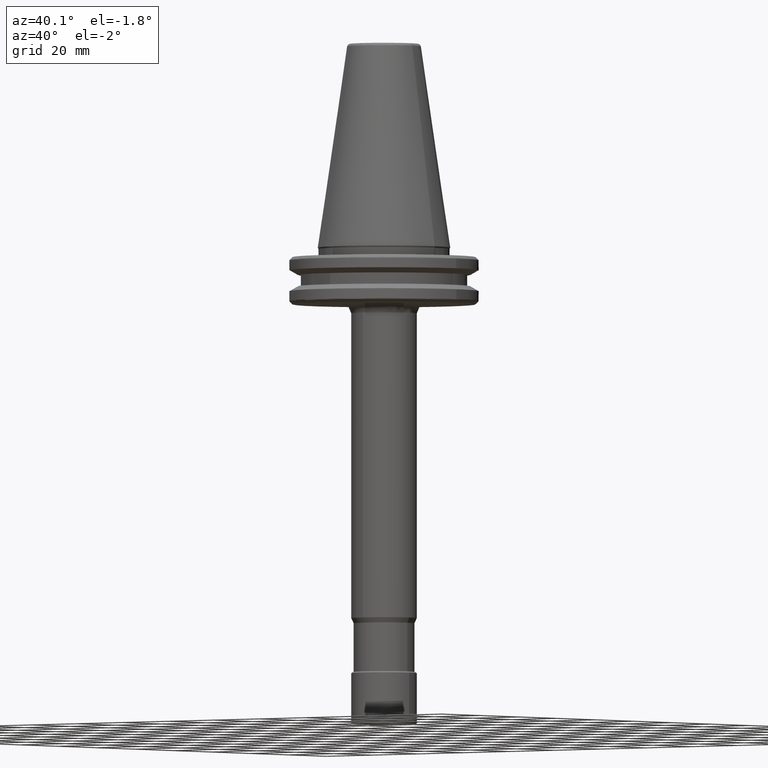
[diagram: clean part render]
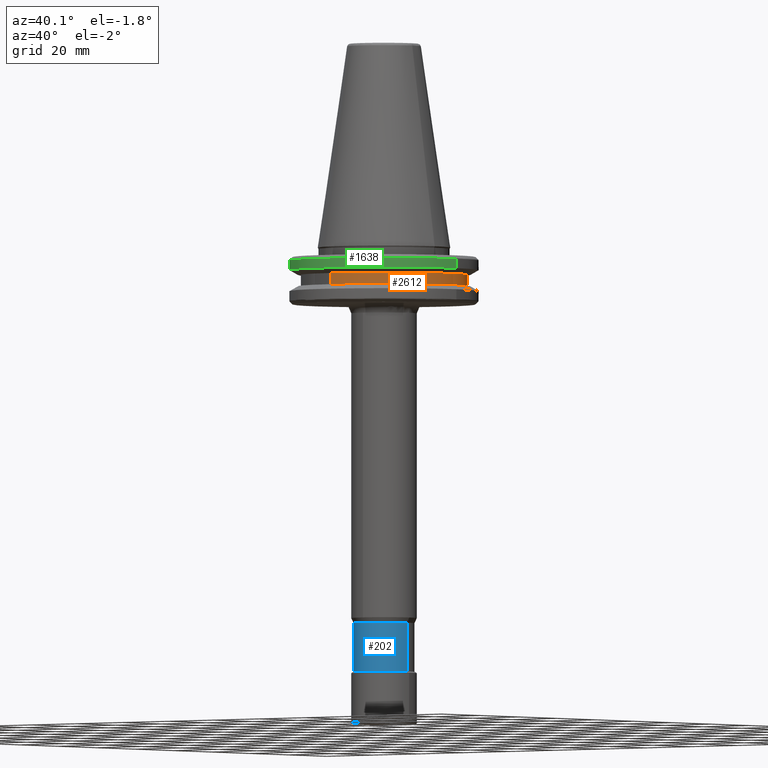
[diagram: same view with three faces highlighted in distinct colors, each labeled with its STEP entity id]
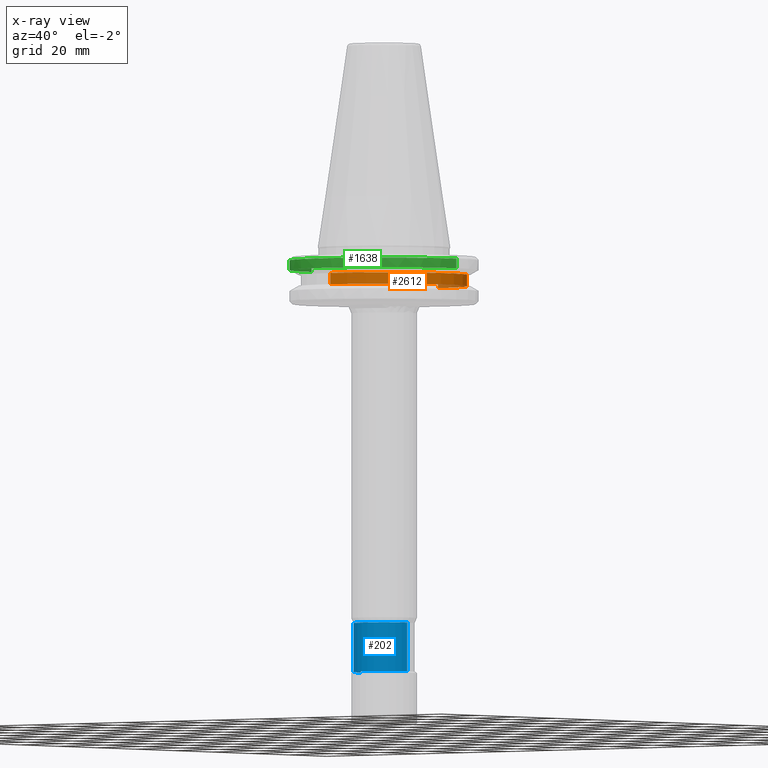
[diagram: x-ray of the same camera — body ghosted, the three highlighted faces saturated]
A machine part, auxiliary view with three faces highlighted in distinct colors.
The next image is the same camera in x-ray (body ghosted, the three faces saturated) — at least one of them is partly hidden behind the body in this view.
Their STEP definitions:

[orange] entity #2612 — the highlighted cylindrical surface (partial cylindrical patch) has radius 28 mm, axis along (0, -0, 1).
#9 = CARTESIAN_POINT ( 'NONE',  ( 0.0000000000000000000, -28.00000000000000000, -13.00000000360000200 ) ) ;
#62 = CYLINDRICAL_SURFACE ( 'NONE', #1961, 28.00000000000000000 ) ;
#67 = VERTEX_POINT ( 'NONE', #9 ) ;
#68 = FACE_OUTER_BOUND ( 'NONE', #2570, .T. ) ;
#336 = CARTESIAN_POINT ( 'NONE',  ( 0.0000000000000000000, 1.115178739458694700E-025, -13.00000000360000000 ) ) ;
#351 = AXIS2_PLACEMENT_3D ( 'NONE', #336, #2111, #631 ) ;
#431 = DIRECTION ( 'NONE',  ( 0.0000000000000000000, -3.097720492815727700E-017, 1.000000000000000000 ) ) ;
#631 = DIRECTION ( 'NONE',  ( 0.0000000000000000000, -1.000000000000000000, -6.195440985631454100E-017 ) ) ;
#674 = VERTEX_POINT ( 'NONE', #1989 ) ;
#779 = ORIENTED_EDGE ( 'NONE', *, *, #1553, .F. ) ;
#911 = EDGE_CURVE ( 'NONE', #2145, #674, #2134, .T. ) ;
#1008 = DIRECTION ( 'NONE',  ( 0.0000000000000000000, -3.097720492815727700E-017, 1.000000000000000000 ) ) ;
#1087 = VERTEX_POINT ( 'NONE', #1534 ) ;
#1488 = LINE ( 'NONE', #2494, #2853 ) ;
#1534 = CARTESIAN_POINT ( 'NONE',  ( 3.429011037612589300E-015, 28.00000000000000000, -13.00000000360000000 ) ) ;
#1553 = EDGE_CURVE ( 'NONE', #67, #2145, #2807, .T. ) ;
#1560 = ORIENTED_EDGE ( 'NONE', *, *, #2126, .T. ) ;
#1887 = ORIENTED_EDGE ( 'NONE', *, *, #911, .F. ) ;
#1925 = VECTOR ( 'NONE', #2810, 1000.000000000000000 ) ;
#1952 = ORIENTED_EDGE ( 'NONE', *, *, #2751, .F. ) ;
#1955 = DIRECTION ( 'NONE',  ( 0.0000000000000000000, -1.000000000000000000, -6.195440985631454100E-017 ) ) ;
#1961 = AXIS2_PLACEMENT_3D ( 'NONE', #2373, #3000, #2236 ) ;
#1989 = CARTESIAN_POINT ( 'NONE',  ( 3.429011037612589300E-015, 28.00000000000000000, -9.200000003449996900 ) ) ;
#2055 = CARTESIAN_POINT ( 'NONE',  ( 0.0000000000000000000, -28.00000000000000000, -13.00000000000000400 ) ) ;
#2111 = DIRECTION ( 'NONE',  ( -0.0000000000000000000, 3.097720492815727700E-017, -1.000000000000000000 ) ) ;
#2126 = EDGE_CURVE ( 'NONE', #1087, #674, #1488, .T. ) ;
#2134 = CIRCLE ( 'NONE', #2555, 28.00000000000000000 ) ;
#2145 = VERTEX_POINT ( 'NONE', #2229 ) ;
#2229 = CARTESIAN_POINT ( 'NONE',  ( 0.0000000000000000000, -28.00000000000000000, -9.200000003449998700 ) ) ;
#2236 = DIRECTION ( 'NONE',  ( 0.0000000000000000000, -1.000000000000000000, -6.195440985631454100E-017 ) ) ;
#2373 = CARTESIAN_POINT ( 'NONE',  ( 0.0000000000000000000, 0.0000000000000000000, -13.00000000000000200 ) ) ;
#2494 = CARTESIAN_POINT ( 'NONE',  ( 3.429011037612589300E-015, 28.00000000000000000, -13.00000000000000000 ) ) ;
#2499 = CIRCLE ( 'NONE', #351, 28.00000000000000000 ) ;
#2555 = AXIS2_PLACEMENT_3D ( 'NONE', #2953, #431, #1955 ) ;
#2570 = EDGE_LOOP ( 'NONE', ( #1952, #1560, #1887, #779 ) ) ;
#2612 = ADVANCED_FACE ( 'NONE', ( #68 ), #62, .T. ) ;
#2751 = EDGE_CURVE ( 'NONE', #1087, #67, #2499, .T. ) ;
#2807 = LINE ( 'NONE', #2055, #1925 ) ;
#2810 = DIRECTION ( 'NONE',  ( 0.0000000000000000000, -3.097720492815727700E-017, 1.000000000000000000 ) ) ;
#2853 = VECTOR ( 'NONE', #1008, 1000.000000000000000 ) ;
#2953 = CARTESIAN_POINT ( 'NONE',  ( 0.0000000000000000000, -1.177133786201263800E-016, -9.200000003449996900 ) ) ;
#3000 = DIRECTION ( 'NONE',  ( 0.0000000000000000000, -3.097720492815727700E-017, 1.000000000000000000 ) ) ;

[blue] entity #202 — the highlighted cylindrical surface (edge-blend (fillet) strip) has radius 10.2 mm, axis along (0, 0, 1).
#22 = EDGE_CURVE ( 'NONE', #1681, #2675, #55, .T. ) ;
#55 = LINE ( 'NONE', #1593, #2188 ) ;
#202 = ADVANCED_FACE ( 'NONE', ( #1298 ), #225, .T. ) ;
#225 = CYLINDRICAL_SURFACE ( 'NONE', #2036, 10.19999999999999900 ) ;
#461 = DIRECTION ( 'NONE',  ( 0.0000000000000000000, 0.0000000000000000000, 1.000000000000000000 ) ) ;
#875 = ORIENTED_EDGE ( 'NONE', *, *, #954, .T. ) ;
#954 = EDGE_CURVE ( 'NONE', #1814, #3121, #1236, .T. ) ;
#959 = VECTOR ( 'NONE', #461, 1000.000000000000000 ) ;
#1024 = EDGE_CURVE ( 'NONE', #1814, #1681, #2992, .T. ) ;
#1070 = CARTESIAN_POINT ( 'NONE',  ( 0.0000000000000000000, 0.0000000000000000000, -142.5000000000000300 ) ) ;
#1146 = EDGE_CURVE ( 'NONE', #2675, #3121, #2699, .T. ) ;
#1217 = DIRECTION ( 'NONE',  ( -0.0000000000000000000, -0.0000000000000000000, -1.000000000000000000 ) ) ;
#1229 = DIRECTION ( 'NONE',  ( 0.0000000000000000000, 0.0000000000000000000, 1.000000000000000000 ) ) ;
#1236 = LINE ( 'NONE', #3235, #959 ) ;
#1271 = ORIENTED_EDGE ( 'NONE', *, *, #1146, .F. ) ;
#1298 = FACE_OUTER_BOUND ( 'NONE', #2106, .T. ) ;
#1593 = CARTESIAN_POINT ( 'NONE',  ( -10.19999999999999900, 1.249139735130300200E-015, -142.5000000000000300 ) ) ;
#1601 = ORIENTED_EDGE ( 'NONE', *, *, #22, .F. ) ;
#1671 = DIRECTION ( 'NONE',  ( 1.000000000000000000, 0.0000000000000000000, 0.0000000000000000000 ) ) ;
#1681 = VERTEX_POINT ( 'NONE', #3379 ) ;
#1688 = CARTESIAN_POINT ( 'NONE',  ( -10.19999999999999900, 1.298125607096194400E-015, -126.1156055359999900 ) ) ;
#1743 = CARTESIAN_POINT ( 'NONE',  ( 0.0000000000000000000, 0.0000000000000000000, -142.5000000000000300 ) ) ;
#1814 = VERTEX_POINT ( 'NONE', #2210 ) ;
#1829 = DIRECTION ( 'NONE',  ( 1.000000000000000000, 0.0000000000000000000, 0.0000000000000000000 ) ) ;
#2036 = AXIS2_PLACEMENT_3D ( 'NONE', #1070, #1229, #1671 ) ;
#2049 = AXIS2_PLACEMENT_3D ( 'NONE', #1743, #1217, #2723 ) ;
#2106 = EDGE_LOOP ( 'NONE', ( #1601, #2949, #875, #1271 ) ) ;
#2188 = VECTOR ( 'NONE', #2444, 1000.000000000000000 ) ;
#2210 = CARTESIAN_POINT ( 'NONE',  ( 10.19999999999999900, 0.0000000000000000000, -142.5000000000000300 ) ) ;
#2444 = DIRECTION ( 'NONE',  ( 0.0000000000000000000, 0.0000000000000000000, 1.000000000000000000 ) ) ;
#2675 = VERTEX_POINT ( 'NONE', #1688 ) ;
#2699 = CIRCLE ( 'NONE', #2831, 10.19999999999999900 ) ;
#2723 = DIRECTION ( 'NONE',  ( 1.000000000000000000, 0.0000000000000000000, 0.0000000000000000000 ) ) ;
#2831 = AXIS2_PLACEMENT_3D ( 'NONE', #3024, #3117, #1829 ) ;
#2949 = ORIENTED_EDGE ( 'NONE', *, *, #1024, .F. ) ;
#2992 = CIRCLE ( 'NONE', #2049, 10.19999999999999900 ) ;
#3024 = CARTESIAN_POINT ( 'NONE',  ( 0.0000000000000000000, 0.0000000000000000000, -126.1156055359999900 ) ) ;
#3117 = DIRECTION ( 'NONE',  ( 0.0000000000000000000, 0.0000000000000000000, 1.000000000000000000 ) ) ;
#3121 = VERTEX_POINT ( 'NONE', #3256 ) ;
#3235 = CARTESIAN_POINT ( 'NONE',  ( 10.19999999999999900, 0.0000000000000000000, -142.5000000000000300 ) ) ;
#3256 = CARTESIAN_POINT ( 'NONE',  ( 10.19999999999999900, 0.0000000000000000000, -126.1156055359999900 ) ) ;
#3379 = CARTESIAN_POINT ( 'NONE',  ( -10.19999999999999900, 1.249139735130300200E-015, -142.5000000000000300 ) ) ;

[green] entity #1638 — the highlighted cylindrical surface (partial cylindrical patch) has radius 31.75 mm, axis along (0, -0, 1).
#2 = CARTESIAN_POINT ( 'NONE',  ( 8.717907037267220700, -30.52966748715623500, -4.365685425280747500 ) ) ;
#6 = CIRCLE ( 'NONE', #1670, 31.75000000003620200 ) ;
#23 = DIRECTION ( 'NONE',  ( 0.0000000000000000000, 0.0000000000000000000, 1.000000000000000000 ) ) ;
#43 = ORIENTED_EDGE ( 'NONE', *, *, #1165, .F. ) ;
#103 = VERTEX_POINT ( 'NONE', #741 ) ;
#118 = CIRCLE ( 'NONE', #1374, 31.75000000000000000 ) ;
#257 = CYLINDRICAL_SURFACE ( 'NONE', #1873, 31.75000000000000000 ) ;
#262 = CARTESIAN_POINT ( 'NONE',  ( 31.75000000000000000, 0.0000000000000000000, -7.578163358000000300 ) ) ;
#385 = EDGE_CURVE ( 'NONE', #2076, #3165, #118, .T. ) ;
#446 = CARTESIAN_POINT ( 'NONE',  ( -31.75000000000000000, 3.888253587292846500E-015, -7.578163358000000300 ) ) ;
#502 = LINE ( 'NONE', #262, #2809 ) ;
#516 = CIRCLE ( 'NONE', #3179, 31.75000000000000000 ) ;
#564 = DIRECTION ( 'NONE',  ( 0.0000000000000000000, -0.0000000000000000000, 1.000000000000000000 ) ) ;
#583 = DIRECTION ( 'NONE',  ( 1.000000000000000000, 0.0000000000000000000, 0.0000000000000000000 ) ) ;
#607 = DIRECTION ( 'NONE',  ( -0.0000000000000000000, -0.0000000000000000000, 1.000000000000000000 ) ) ;
#701 = AXIS2_PLACEMENT_3D ( 'NONE', #843, #2584, #2552 ) ;
#704 = VERTEX_POINT ( 'NONE', #934 ) ;
#728 = CARTESIAN_POINT ( 'NONE',  ( 31.75000000000000000, 0.0000000000000000000, -7.578163358000100700 ) ) ;
#741 = CARTESIAN_POINT ( 'NONE',  ( 31.75000000000453300, -2.850947702612274100E-009, -4.365685425006481600 ) ) ;
#756 = EDGE_CURVE ( 'NONE', #2354, #1937, #516, .T. ) ;
#821 = CARTESIAN_POINT ( 'NONE',  ( 0.0000000000000000000, 0.0000000000000000000, -4.365685425006482500 ) ) ;
#834 = DIRECTION ( 'NONE',  ( 0.0000000000000000000, -0.0000000000000000000, 1.000000000000000000 ) ) ;
#843 = CARTESIAN_POINT ( 'NONE',  ( 0.0000000000000000000, 0.0000000000000000000, -4.365685425000001500 ) ) ;
#934 = CARTESIAN_POINT ( 'NONE',  ( -8.600431038058800900, -30.56296919405880200, -4.365685425364777200 ) ) ;
#977 = ORIENTED_EDGE ( 'NONE', *, *, #1596, .F. ) ;
#1063 = DIRECTION ( 'NONE',  ( 1.000000000000000000, 0.0000000000000000000, 0.0000000000000000000 ) ) ;
#1117 = CARTESIAN_POINT ( 'NONE',  ( 0.0000000000000000000, 0.0000000000000000000, -4.365685425000001500 ) ) ;
#1165 = EDGE_CURVE ( 'NONE', #3165, #3091, #6, .T. ) ;
#1279 = DIRECTION ( 'NONE',  ( 1.000000000000000000, 0.0000000000000000000, 5.463695987328526400E-017 ) ) ;
#1322 = AXIS2_PLACEMENT_3D ( 'NONE', #821, #2561, #1063 ) ;
#1357 = ORIENTED_EDGE ( 'NONE', *, *, #1886, .F. ) ;
#1374 = AXIS2_PLACEMENT_3D ( 'NONE', #1702, #1492, #1279 ) ;
#1471 = CARTESIAN_POINT ( 'NONE',  ( -18.50000000000000000, -25.80334280671147700, -4.365685426028636400 ) ) ;
#1492 = DIRECTION ( 'NONE',  ( 0.0000000000000000000, 0.0000000000000000000, 1.000000000000000000 ) ) ;
#1596 = EDGE_CURVE ( 'NONE', #1734, #103, #1808, .T. ) ;
#1638 = ADVANCED_FACE ( 'NONE', ( #3275 ), #257, .T. ) ;
#1642 = DIRECTION ( 'NONE',  ( 0.0000000000000000000, -0.0000000000000000000, 1.000000000000000000 ) ) ;
#1670 = AXIS2_PLACEMENT_3D ( 'NONE', #2602, #607, #2088 ) ;
#1678 = CARTESIAN_POINT ( 'NONE',  ( -31.75000000000000000, 3.888253587292846500E-015, -4.365685425000001500 ) ) ;
#1700 = ORIENTED_EDGE ( 'NONE', *, *, #2280, .F. ) ;
#1702 = CARTESIAN_POINT ( 'NONE',  ( 0.0000000000000000000, 0.0000000000000000000, -4.365685425000001500 ) ) ;
#1734 = VERTEX_POINT ( 'NONE', #2 ) ;
#1808 = CIRCLE ( 'NONE', #701, 31.75000000000000000 ) ;
#1830 = EDGE_LOOP ( 'NONE', ( #1357, #3167, #3063, #977, #2513, #1700, #43, #2581 ) ) ;
#1873 = AXIS2_PLACEMENT_3D ( 'NONE', #3093, #834, #583 ) ;
#1881 = DIRECTION ( 'NONE',  ( 1.000000000000000000, 0.0000000000000000000, 5.463695987328526400E-017 ) ) ;
#1886 = EDGE_CURVE ( 'NONE', #2354, #2076, #2854, .T. ) ;
#1937 = VERTEX_POINT ( 'NONE', #728 ) ;
#2076 = VERTEX_POINT ( 'NONE', #1678 ) ;
#2088 = DIRECTION ( 'NONE',  ( 1.000000000000000000, 0.0000000000000000000, 0.0000000000000000000 ) ) ;
#2177 = VECTOR ( 'NONE', #1642, 1000.000000000000000 ) ;
#2180 = CIRCLE ( 'NONE', #3281, 31.75000000000000000 ) ;
#2255 = DIRECTION ( 'NONE',  ( 1.000000000000000000, 0.0000000000000000000, 3.168943672650545300E-015 ) ) ;
#2280 = EDGE_CURVE ( 'NONE', #3091, #704, #2180, .T. ) ;
#2298 = CARTESIAN_POINT ( 'NONE',  ( -25.80334280679063900, -18.50000000000000000, -4.365685426028637300 ) ) ;
#2354 = VERTEX_POINT ( 'NONE', #2471 ) ;
#2471 = CARTESIAN_POINT ( 'NONE',  ( -31.75000000000000000, 3.888253587292846500E-015, -7.578163358000100700 ) ) ;
#2513 = ORIENTED_EDGE ( 'NONE', *, *, #3263, .F. ) ;
#2552 = DIRECTION ( 'NONE',  ( 1.000000000000000000, 0.0000000000000000000, 5.463695987328526400E-017 ) ) ;
#2561 = DIRECTION ( 'NONE',  ( -0.0000000000000000000, -0.0000000000000000000, 1.000000000000000000 ) ) ;
#2581 = ORIENTED_EDGE ( 'NONE', *, *, #385, .F. ) ;
#2584 = DIRECTION ( 'NONE',  ( 0.0000000000000000000, 0.0000000000000000000, 1.000000000000000000 ) ) ;
#2602 = CARTESIAN_POINT ( 'NONE',  ( 0.0000000000000000000, 0.0000000000000000000, -4.365685425006482500 ) ) ;
#2752 = CARTESIAN_POINT ( 'NONE',  ( 0.0000000000000000000, 0.0000000000000000000, -7.578163358000100700 ) ) ;
#2762 = DIRECTION ( 'NONE',  ( 0.0000000000000000000, 0.0000000000000000000, 1.000000000000000000 ) ) ;
#2809 = VECTOR ( 'NONE', #564, 1000.000000000000000 ) ;
#2854 = LINE ( 'NONE', #446, #2177 ) ;
#2912 = EDGE_CURVE ( 'NONE', #1937, #103, #502, .T. ) ;
#2940 = CIRCLE ( 'NONE', #1322, 31.75000000003620200 ) ;
#3063 = ORIENTED_EDGE ( 'NONE', *, *, #2912, .T. ) ;
#3091 = VERTEX_POINT ( 'NONE', #1471 ) ;
#3093 = CARTESIAN_POINT ( 'NONE',  ( 0.0000000000000000000, 0.0000000000000000000, -7.578163358000000300 ) ) ;
#3165 = VERTEX_POINT ( 'NONE', #2298 ) ;
#3167 = ORIENTED_EDGE ( 'NONE', *, *, #756, .T. ) ;
#3179 = AXIS2_PLACEMENT_3D ( 'NONE', #2752, #2762, #2255 ) ;
#3263 = EDGE_CURVE ( 'NONE', #704, #1734, #2940, .T. ) ;
#3275 = FACE_OUTER_BOUND ( 'NONE', #1830, .T. ) ;
#3281 = AXIS2_PLACEMENT_3D ( 'NONE', #1117, #23, #1881 ) ;